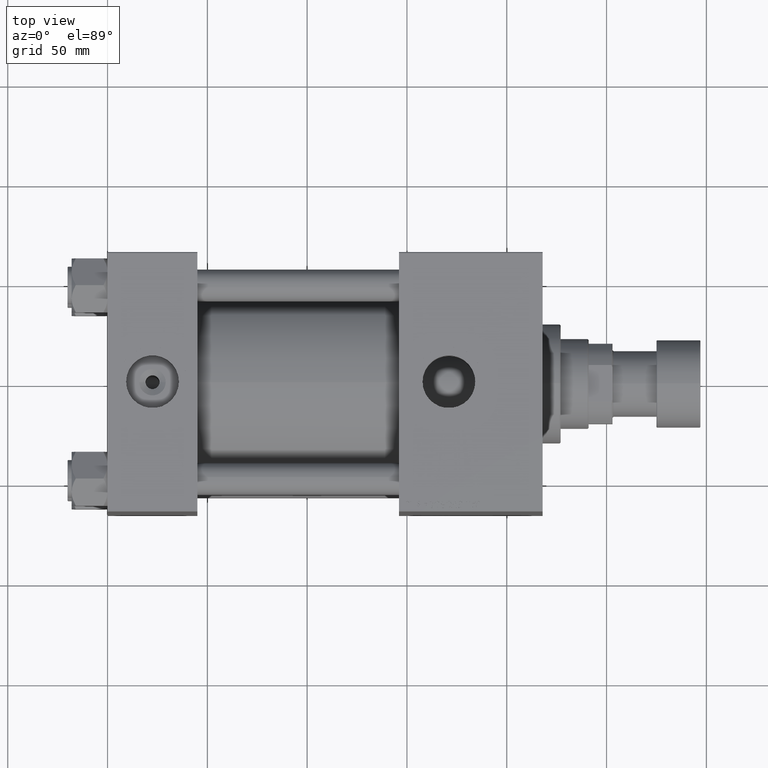
[diagram: clean part render]
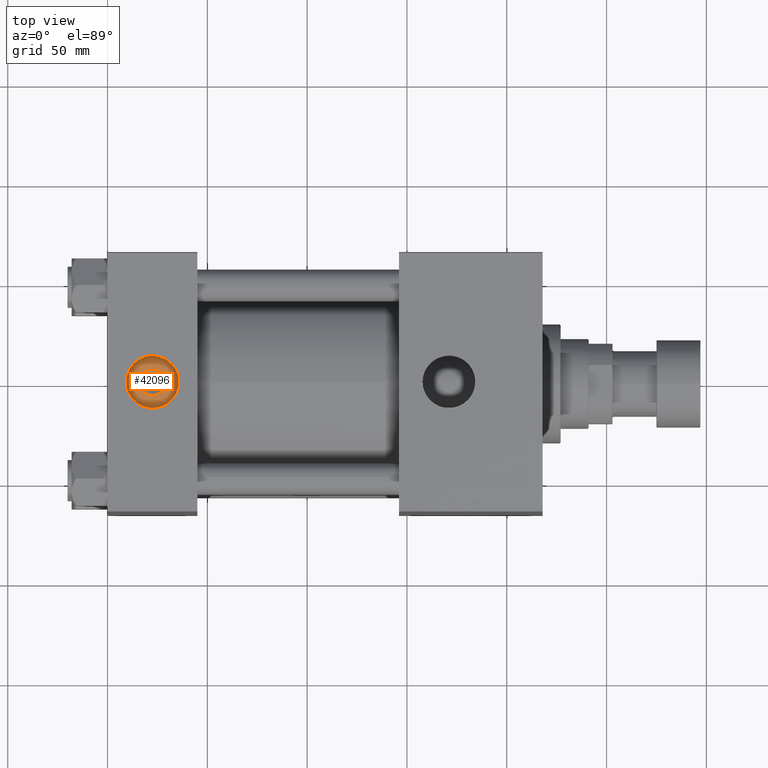
[diagram: same view with one face highlighted and labeled with its STEP entity id]
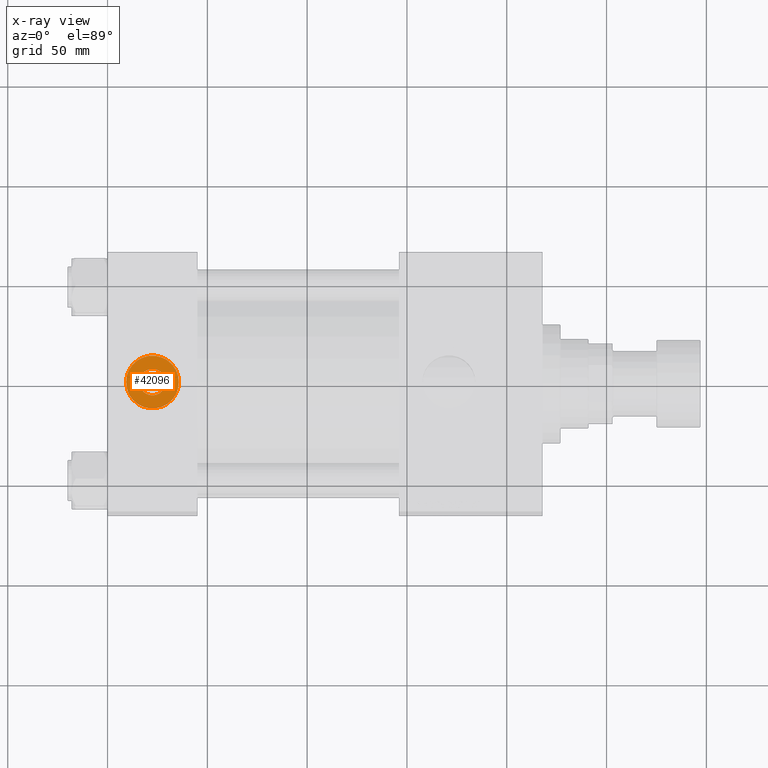
[diagram: x-ray of the same camera — body ghosted, the highlighted face saturated]
A machine part, top view. The second image highlights one B-rep face of the part: STEP entity #42096.
The next image is the same camera in x-ray: the body ghosted, the highlighted face saturated — about 0% of this face is hidden behind the body in this view.
In plain terms, the highlighted planar face has unit normal (0, 0, 1).
Its self-contained STEP definition (entity closure, byte-faithful):
#1020 = EDGE_CURVE ( 'NONE', #9981, #29109, #28342, .T. ) ;
#1255 = ORIENTED_EDGE ( 'NONE', *, *, #1020, .T. ) ;
#1272 = CARTESIAN_POINT ( 'NONE',  ( 35.71999999999999886, -8.673617379884035472E-15, 54.19999999999999574 ) ) ;
#5976 = EDGE_LOOP ( 'NONE', ( #38796, #39686 ) ) ;
#7470 = AXIS2_PLACEMENT_3D ( 'NONE', #47961, #12449, #48718 ) ;
#8385 = CARTESIAN_POINT ( 'NONE',  ( 22.50000000000000000, -8.673617379884035472E-15, 54.19999999999999574 ) ) ;
#9057 = FACE_OUTER_BOUND ( 'NONE', #18593, .T. ) ;
#9981 = VERTEX_POINT ( 'NONE', #45186 ) ;
#10961 = DIRECTION ( 'NONE',  ( 1.000000000000000000, 0.000000000000000000, 0.000000000000000000 ) ) ;
#10967 = AXIS2_PLACEMENT_3D ( 'NONE', #21340, #46211, #37177 ) ;
#11575 = AXIS2_PLACEMENT_3D ( 'NONE', #50741, #39606, #51256 ) ;
#12449 = DIRECTION ( 'NONE',  ( 0.000000000000000000, 0.000000000000000000, 1.000000000000000000 ) ) ;
#14967 = AXIS2_PLACEMENT_3D ( 'NONE', #8385, #16177, #35635 ) ;
#16090 = EDGE_CURVE ( 'NONE', #32569, #24003, #48617, .T. ) ;
#16177 = DIRECTION ( 'NONE',  ( -0.000000000000000000, -0.000000000000000000, -1.000000000000000000 ) ) ;
#16758 = CARTESIAN_POINT ( 'NONE',  ( 15.85999999999993726, -7.860451905250184685E-15, 54.19999999999999574 ) ) ;
#18593 = EDGE_LOOP ( 'NONE', ( #34846, #1255 ) ) ;
#20700 = CIRCLE ( 'NONE', #11575, 13.22000000000000242 ) ;
#21340 = CARTESIAN_POINT ( 'NONE',  ( 22.50000000000000000, -8.673617379884035472E-15, 54.19999999999999574 ) ) ;
#24003 = VERTEX_POINT ( 'NONE', #38154 ) ;
#24125 = FACE_BOUND ( 'NONE', #5976, .T. ) ;
#27852 = EDGE_CURVE ( 'NONE', #24003, #32569, #31521, .T. ) ;
#28342 = CIRCLE ( 'NONE', #10967, 13.22000000000000242 ) ;
#29109 = VERTEX_POINT ( 'NONE', #1272 ) ;
#31188 = DIRECTION ( 'NONE',  ( -0.000000000000000000, -0.000000000000000000, -1.000000000000000000 ) ) ;
#31521 = CIRCLE ( 'NONE', #14967, 6.640000000000062741 ) ;
#32163 = PLANE ( 'NONE',  #7470 ) ;
#32569 = VERTEX_POINT ( 'NONE', #16758 ) ;
#33706 = AXIS2_PLACEMENT_3D ( 'NONE', #38722, #31188, #10961 ) ;
#34846 = ORIENTED_EDGE ( 'NONE', *, *, #40466, .T. ) ;
#35635 = DIRECTION ( 'NONE',  ( 1.000000000000000000, 0.000000000000000000, 0.000000000000000000 ) ) ;
#37177 = DIRECTION ( 'NONE',  ( 1.000000000000000000, 0.000000000000000000, 0.000000000000000000 ) ) ;
#38154 = CARTESIAN_POINT ( 'NONE',  ( 29.14000000000006096, -8.673617379884035472E-15, 54.19999999999999574 ) ) ;
#38722 = CARTESIAN_POINT ( 'NONE',  ( 22.50000000000000000, -8.673617379884035472E-15, 54.19999999999999574 ) ) ;
#38796 = ORIENTED_EDGE ( 'NONE', *, *, #27852, .T. ) ;
#39606 = DIRECTION ( 'NONE',  ( 0.000000000000000000, 0.000000000000000000, 1.000000000000000000 ) ) ;
#39686 = ORIENTED_EDGE ( 'NONE', *, *, #16090, .T. ) ;
#40466 = EDGE_CURVE ( 'NONE', #29109, #9981, #20700, .T. ) ;
#42096 = ADVANCED_FACE ( 'NONE', ( #24125, #9057 ), #32163, .T. ) ;
#45186 = CARTESIAN_POINT ( 'NONE',  ( 9.279999999999994031, -7.054634311411234321E-15, 54.19999999999999574 ) ) ;
#46211 = DIRECTION ( 'NONE',  ( 0.000000000000000000, 0.000000000000000000, 1.000000000000000000 ) ) ;
#47961 = CARTESIAN_POINT ( 'NONE',  ( 22.50000000000000000, -8.673617379884035472E-15, 54.19999999999999574 ) ) ;
#48617 = CIRCLE ( 'NONE', #33706, 6.640000000000062741 ) ;
#48718 = DIRECTION ( 'NONE',  ( 1.000000000000000000, 0.000000000000000000, -0.000000000000000000 ) ) ;
#50741 = CARTESIAN_POINT ( 'NONE',  ( 22.50000000000000000, -8.673617379884035472E-15, 54.19999999999999574 ) ) ;
#51256 = DIRECTION ( 'NONE',  ( 1.000000000000000000, 0.000000000000000000, 0.000000000000000000 ) ) ;